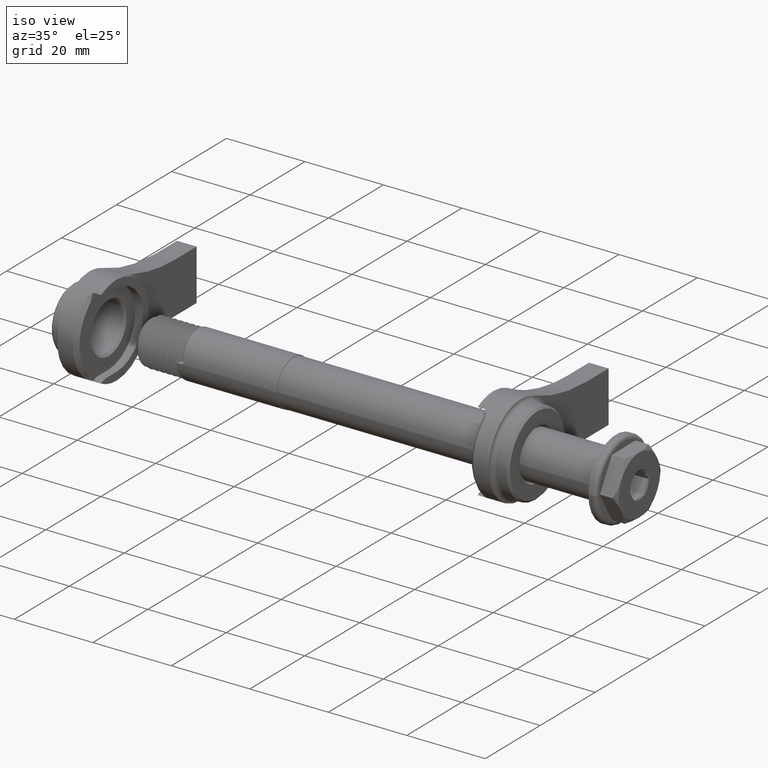
[diagram: clean part render]
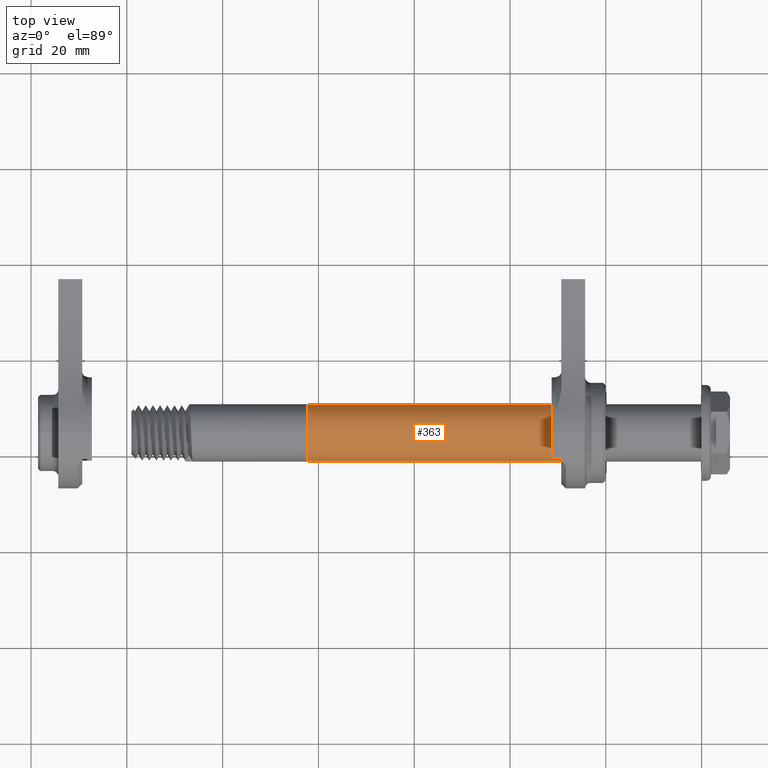
[diagram: tour spotlight — one face highlighted and labeled with its STEP entity id]
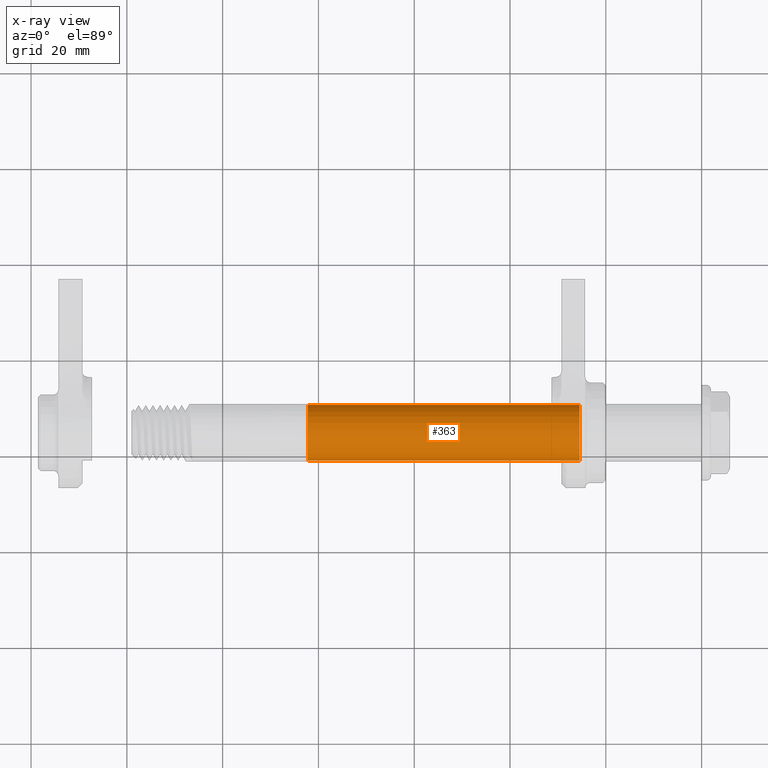
[diagram: x-ray of the same camera — body ghosted, this tour face saturated]
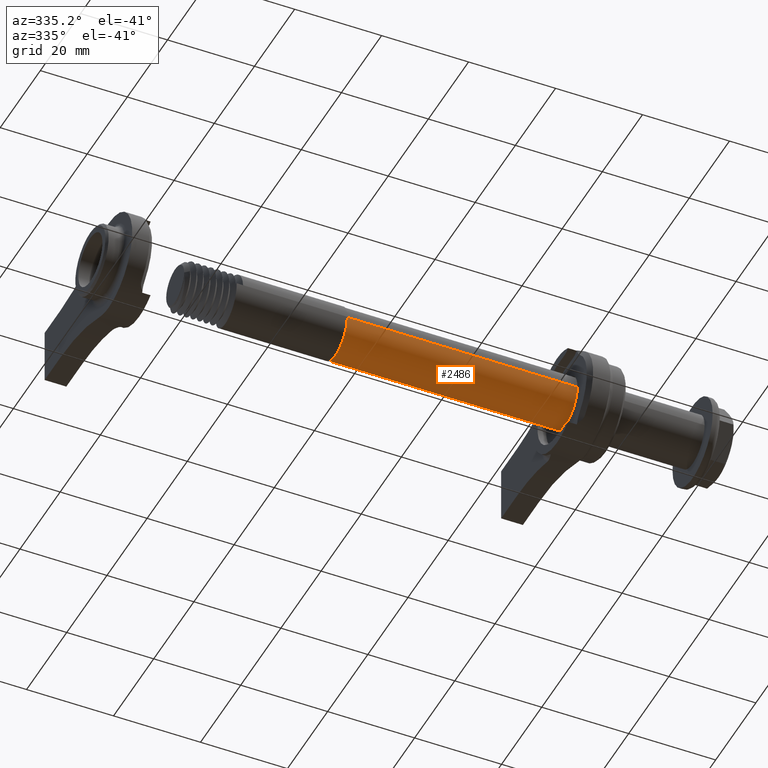
[diagram: tour spotlight — one face highlighted and labeled with its STEP entity id]
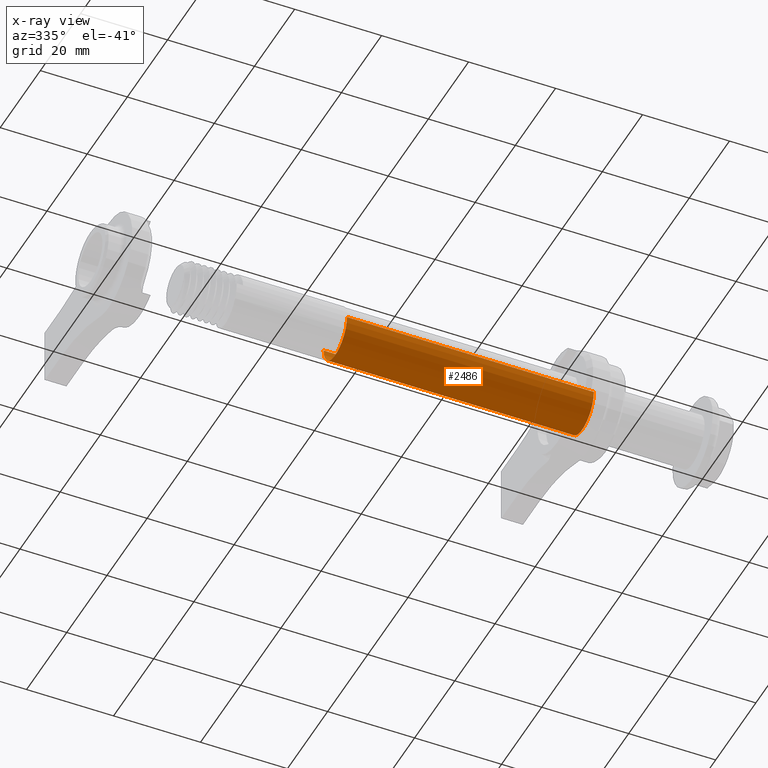
[diagram: x-ray of the same camera — body ghosted, this tour face saturated]
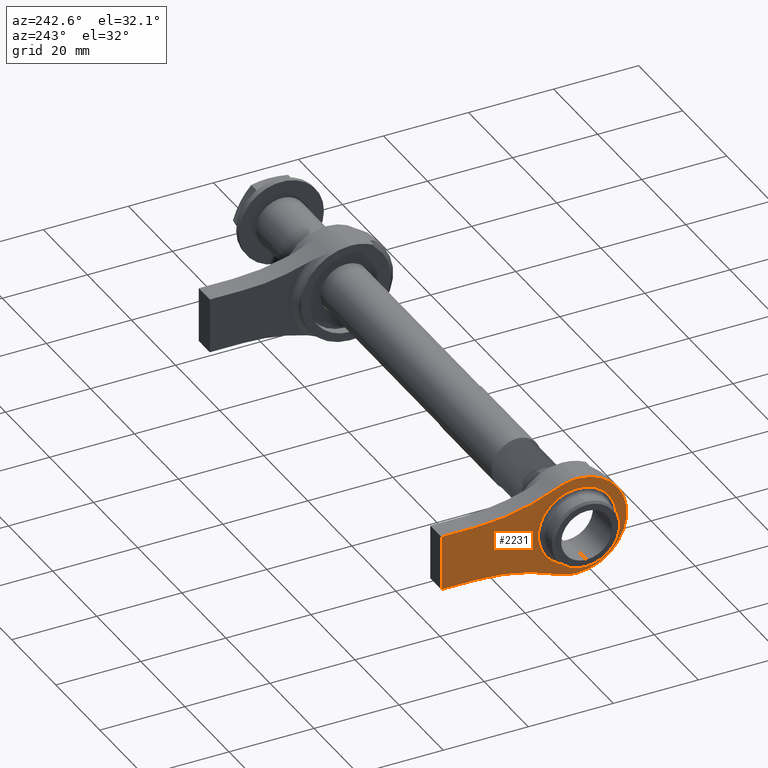
[diagram: tour spotlight — one face highlighted and labeled with its STEP entity id]
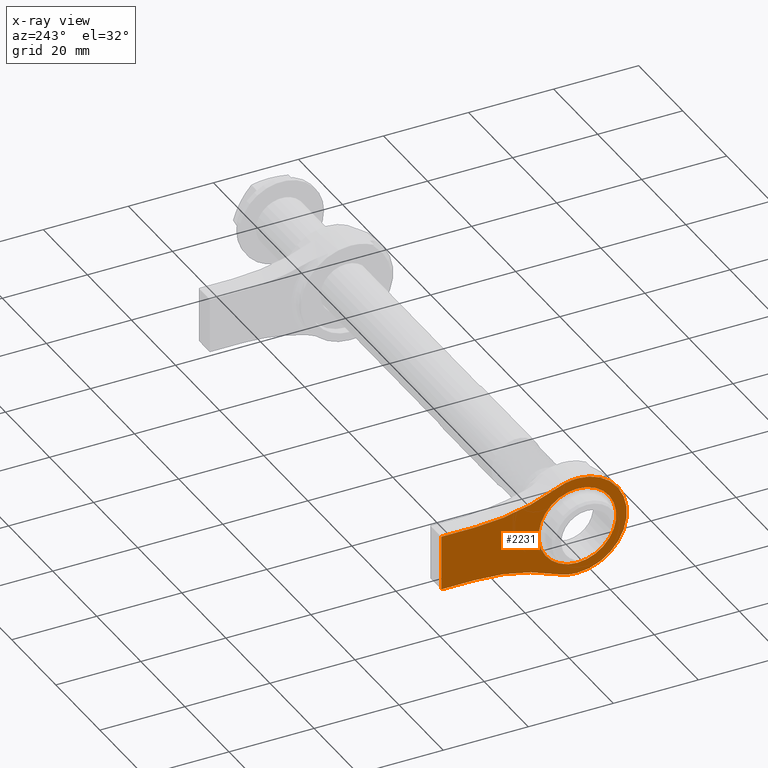
[diagram: x-ray of the same camera — body ghosted, this tour face saturated]
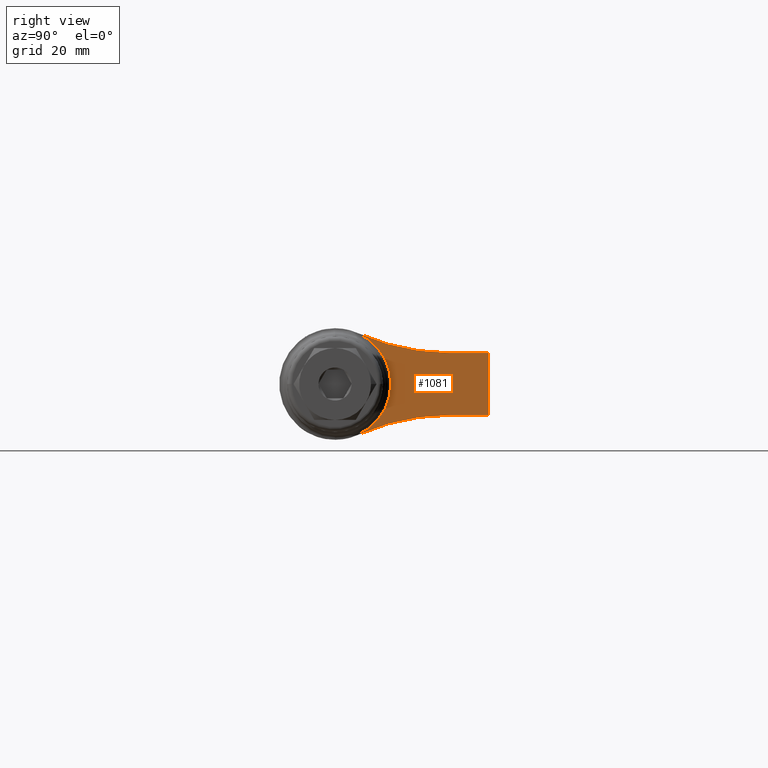
[diagram: tour spotlight — one face highlighted and labeled with its STEP entity id]
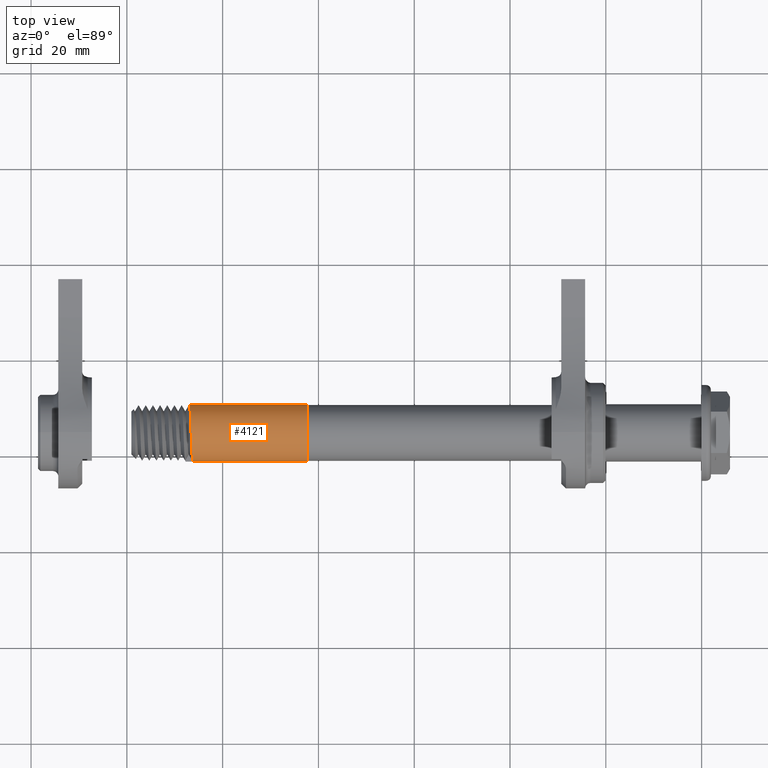
[diagram: tour spotlight — one face highlighted and labeled with its STEP entity id]
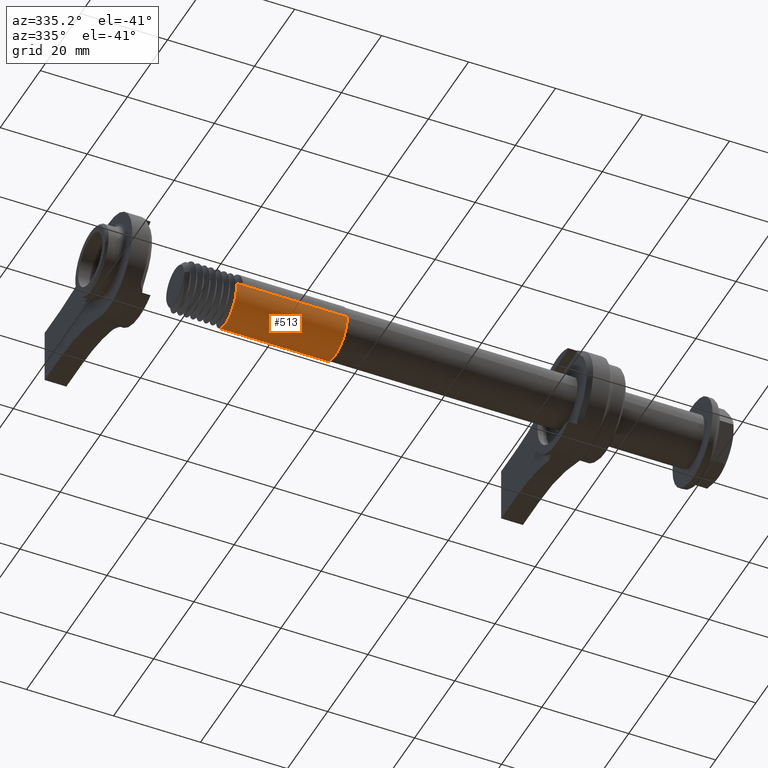
[diagram: tour spotlight — one face highlighted and labeled with its STEP entity id]
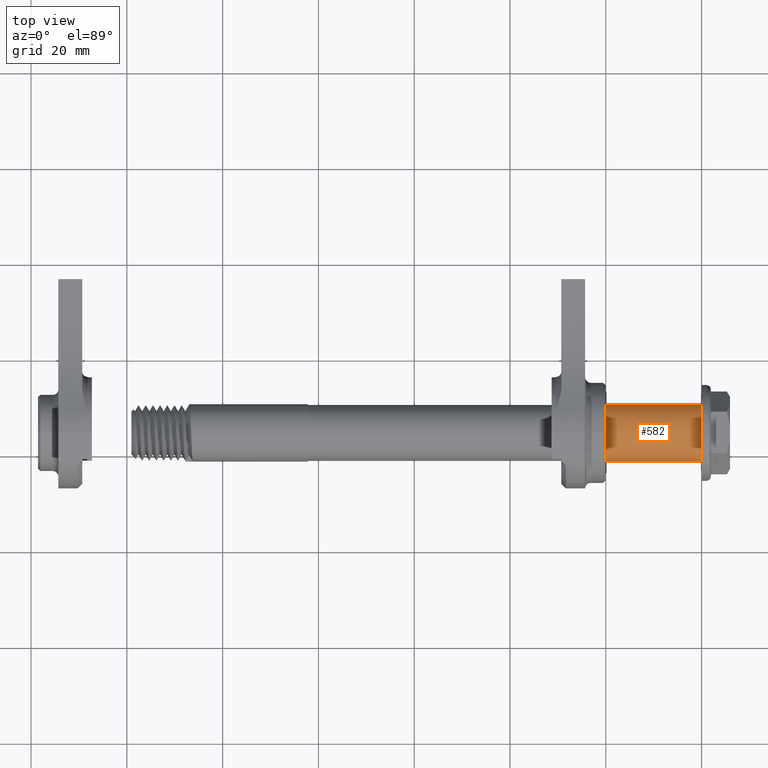
[diagram: tour spotlight — one face highlighted and labeled with its STEP entity id]
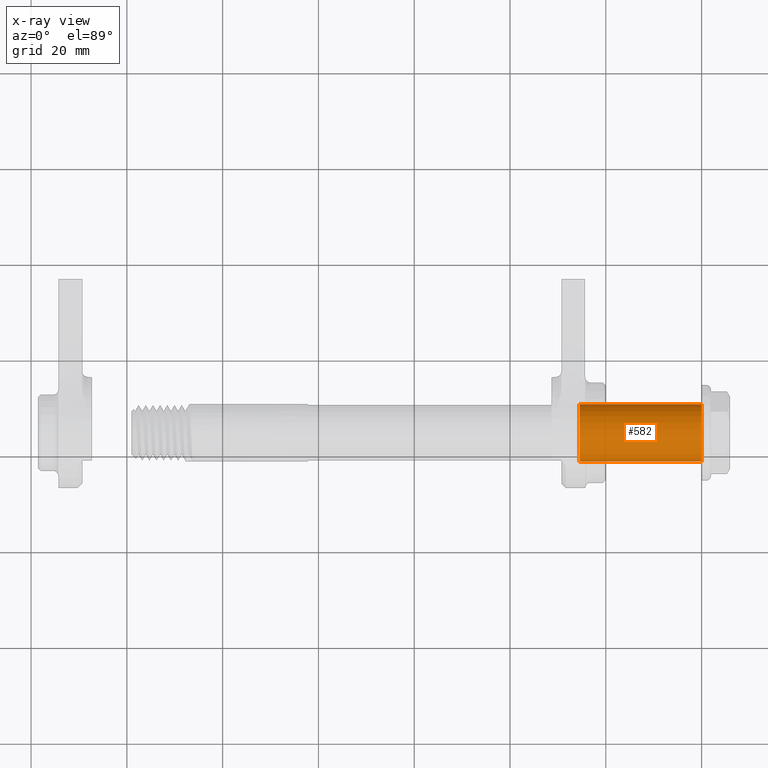
[diagram: x-ray of the same camera — body ghosted, this tour face saturated]
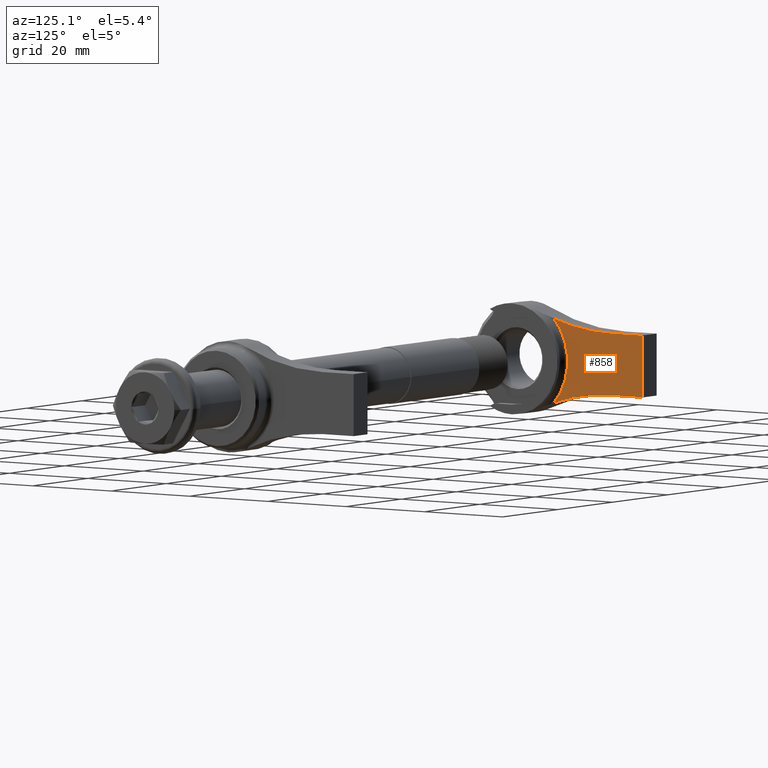
[diagram: tour spotlight — one face highlighted and labeled with its STEP entity id]
A machine part: a face-by-face anatomy tour. The part has 110 B-rep faces; the first image is the clean iso view, then the 8 largest visible faces are spotlighted one at a time (largest first), each with its STEP entity span.

Face 1 — top view, entity #363. An x-ray twin of the same camera follows (body ghosted, this face saturated) — the face is partly hidden behind the body. In plain terms, the highlighted cylindrical surface (edge-blend (fillet) strip) has radius 5.842 mm, axis along (1, 0, 0).
Definition (entity closure, byte-faithful):
#141 = EDGE_CURVE ( 'NONE', #3914, #2803, #1910, .T. ) ;
#363 = ADVANCED_FACE ( 'NONE', ( #2960 ), #1144, .T. ) ;
#373 = AXIS2_PLACEMENT_3D ( 'NONE', #1353, #1398, #374 ) ;
#374 = DIRECTION ( 'NONE',  ( 0.0000000000000000000, 0.0000000000000000000, -1.000000000000000000 ) ) ;
#400 = ORIENTED_EDGE ( 'NONE', *, *, #1794, .T. ) ;
#477 = CARTESIAN_POINT ( 'NONE',  ( -5.540562748477140300, 0.0000000000000000000, -5.841999999999999600 ) ) ;
#510 = CIRCLE ( 'NONE', #3299, 5.841999999999999600 ) ;
#754 = ORIENTED_EDGE ( 'NONE', *, *, #1349, .T. ) ;
#1077 = DIRECTION ( 'NONE',  ( 0.0000000000000000000, 0.0000000000000000000, 1.000000000000000000 ) ) ;
#1144 = CYLINDRICAL_SURFACE ( 'NONE', #2846, 5.841999999999999600 ) ;
#1289 = CARTESIAN_POINT ( 'NONE',  ( -5.540562748477140300, 7.154386600618837600E-016, 5.841999999999999600 ) ) ;
#1349 = EDGE_CURVE ( 'NONE', #2481, #2803, #510, .T. ) ;
#1353 = CARTESIAN_POINT ( 'NONE',  ( 36.82999999999999800, 0.0000000000000000000, 0.0000000000000000000 ) ) ;
#1398 = DIRECTION ( 'NONE',  ( 1.000000000000000000, 0.0000000000000000000, 0.0000000000000000000 ) ) ;
#1424 = DIRECTION ( 'NONE',  ( -1.000000000000000000, 0.0000000000000000000, 0.0000000000000000000 ) ) ;
#1514 = ORIENTED_EDGE ( 'NONE', *, *, #3841, .T. ) ;
#1794 = EDGE_CURVE ( 'NONE', #3914, #3018, #2480, .T. ) ;
#1875 = DIRECTION ( 'NONE',  ( 1.000000000000000000, 0.0000000000000000000, 0.0000000000000000000 ) ) ;
#1910 = LINE ( 'NONE', #477, #4075 ) ;
#2199 = EDGE_LOOP ( 'NONE', ( #400, #1514, #754, #3906 ) ) ;
#2290 = VECTOR ( 'NONE', #3196, 1000.000000000000000 ) ;
#2480 = CIRCLE ( 'NONE', #373, 5.841999999999999600 ) ;
#2481 = VERTEX_POINT ( 'NONE', #3252 ) ;
#2564 = CARTESIAN_POINT ( 'NONE',  ( 36.82999999999999800, 0.0000000000000000000, -5.841999999999999600 ) ) ;
#2803 = VERTEX_POINT ( 'NONE', #3369 ) ;
#2846 = AXIS2_PLACEMENT_3D ( 'NONE', #4221, #1875, #3570 ) ;
#2856 = CARTESIAN_POINT ( 'NONE',  ( 36.82999999999999800, 7.154386600618837600E-016, 5.841999999999999600 ) ) ;
#2960 = FACE_OUTER_BOUND ( 'NONE', #2199, .T. ) ;
#3018 = VERTEX_POINT ( 'NONE', #2856 ) ;
#3196 = DIRECTION ( 'NONE',  ( 1.000000000000000000, 0.0000000000000000000, 0.0000000000000000000 ) ) ;
#3252 = CARTESIAN_POINT ( 'NONE',  ( 93.59999999999999400, 7.154386600618837600E-016, 5.841999999999999600 ) ) ;
#3299 = AXIS2_PLACEMENT_3D ( 'NONE', #3853, #1424, #1077 ) ;
#3369 = CARTESIAN_POINT ( 'NONE',  ( 93.59999999999999400, 0.0000000000000000000, -5.841999999999999600 ) ) ;
#3423 = DIRECTION ( 'NONE',  ( 1.000000000000000000, 0.0000000000000000000, 0.0000000000000000000 ) ) ;
#3570 = DIRECTION ( 'NONE',  ( 0.0000000000000000000, 0.0000000000000000000, -1.000000000000000000 ) ) ;
#3841 = EDGE_CURVE ( 'NONE', #3018, #2481, #3898, .T. ) ;
#3853 = CARTESIAN_POINT ( 'NONE',  ( 93.59999999999999400, 0.0000000000000000000, 0.0000000000000000000 ) ) ;
#3898 = LINE ( 'NONE', #1289, #2290 ) ;
#3906 = ORIENTED_EDGE ( 'NONE', *, *, #141, .F. ) ;
#3914 = VERTEX_POINT ( 'NONE', #2564 ) ;
#4075 = VECTOR ( 'NONE', #3423, 1000.000000000000000 ) ;
#4221 = CARTESIAN_POINT ( 'NONE',  ( -5.540562748477140300, 0.0000000000000000000, 0.0000000000000000000 ) ) ;

Face 2 — auxiliary view, entity #2486. An x-ray twin of the same camera follows (body ghosted, this face saturated) — the face is partly hidden behind the body. In plain terms, the highlighted cylindrical surface (edge-blend (fillet) strip) has radius 5.842 mm, axis along (1, 0, 0).
Definition (entity closure, byte-faithful):
#134 = ORIENTED_EDGE ( 'NONE', *, *, #141, .T. ) ;
#141 = EDGE_CURVE ( 'NONE', #3914, #2803, #1910, .T. ) ;
#159 = DIRECTION ( 'NONE',  ( 1.000000000000000000, 0.0000000000000000000, 0.0000000000000000000 ) ) ;
#477 = CARTESIAN_POINT ( 'NONE',  ( -5.540562748477140300, 0.0000000000000000000, -5.841999999999999600 ) ) ;
#574 = ORIENTED_EDGE ( 'NONE', *, *, #1329, .T. ) ;
#704 = CIRCLE ( 'NONE', #2603, 5.841999999999999600 ) ;
#925 = ORIENTED_EDGE ( 'NONE', *, *, #4190, .T. ) ;
#1208 = CARTESIAN_POINT ( 'NONE',  ( 36.82999999999999800, 0.0000000000000000000, 0.0000000000000000000 ) ) ;
#1289 = CARTESIAN_POINT ( 'NONE',  ( -5.540562748477140300, 7.154386600618837600E-016, 5.841999999999999600 ) ) ;
#1329 = EDGE_CURVE ( 'NONE', #2803, #2481, #704, .T. ) ;
#1341 = FACE_OUTER_BOUND ( 'NONE', #1621, .T. ) ;
#1621 = EDGE_LOOP ( 'NONE', ( #2319, #925, #134, #574 ) ) ;
#1773 = DIRECTION ( 'NONE',  ( -1.000000000000000000, 0.0000000000000000000, 0.0000000000000000000 ) ) ;
#1910 = LINE ( 'NONE', #477, #4075 ) ;
#1976 = CIRCLE ( 'NONE', #4208, 5.841999999999999600 ) ;
#2032 = CYLINDRICAL_SURFACE ( 'NONE', #4385, 5.841999999999999600 ) ;
#2290 = VECTOR ( 'NONE', #3196, 1000.000000000000000 ) ;
#2319 = ORIENTED_EDGE ( 'NONE', *, *, #3841, .F. ) ;
#2481 = VERTEX_POINT ( 'NONE', #3252 ) ;
#2486 = ADVANCED_FACE ( 'NONE', ( #1341 ), #2032, .T. ) ;
#2564 = CARTESIAN_POINT ( 'NONE',  ( 36.82999999999999800, 0.0000000000000000000, -5.841999999999999600 ) ) ;
#2603 = AXIS2_PLACEMENT_3D ( 'NONE', #3800, #1773, #4152 ) ;
#2803 = VERTEX_POINT ( 'NONE', #3369 ) ;
#2856 = CARTESIAN_POINT ( 'NONE',  ( 36.82999999999999800, 7.154386600618837600E-016, 5.841999999999999600 ) ) ;
#3018 = VERTEX_POINT ( 'NONE', #2856 ) ;
#3061 = CARTESIAN_POINT ( 'NONE',  ( -5.540562748477140300, 0.0000000000000000000, 0.0000000000000000000 ) ) ;
#3196 = DIRECTION ( 'NONE',  ( 1.000000000000000000, 0.0000000000000000000, 0.0000000000000000000 ) ) ;
#3233 = DIRECTION ( 'NONE',  ( 0.0000000000000000000, 0.0000000000000000000, -1.000000000000000000 ) ) ;
#3252 = CARTESIAN_POINT ( 'NONE',  ( 93.59999999999999400, 7.154386600618837600E-016, 5.841999999999999600 ) ) ;
#3369 = CARTESIAN_POINT ( 'NONE',  ( 93.59999999999999400, 0.0000000000000000000, -5.841999999999999600 ) ) ;
#3423 = DIRECTION ( 'NONE',  ( 1.000000000000000000, 0.0000000000000000000, 0.0000000000000000000 ) ) ;
#3600 = DIRECTION ( 'NONE',  ( 1.000000000000000000, 0.0000000000000000000, 0.0000000000000000000 ) ) ;
#3800 = CARTESIAN_POINT ( 'NONE',  ( 93.59999999999999400, 0.0000000000000000000, 0.0000000000000000000 ) ) ;
#3841 = EDGE_CURVE ( 'NONE', #3018, #2481, #3898, .T. ) ;
#3898 = LINE ( 'NONE', #1289, #2290 ) ;
#3914 = VERTEX_POINT ( 'NONE', #2564 ) ;
#4075 = VECTOR ( 'NONE', #3423, 1000.000000000000000 ) ;
#4079 = DIRECTION ( 'NONE',  ( 0.0000000000000000000, 0.0000000000000000000, -1.000000000000000000 ) ) ;
#4152 = DIRECTION ( 'NONE',  ( 0.0000000000000000000, 0.0000000000000000000, 1.000000000000000000 ) ) ;
#4190 = EDGE_CURVE ( 'NONE', #3018, #3914, #1976, .T. ) ;
#4208 = AXIS2_PLACEMENT_3D ( 'NONE', #1208, #3600, #4079 ) ;
#4385 = AXIS2_PLACEMENT_3D ( 'NONE', #3061, #159, #3233 ) ;

Face 3 — auxiliary view, entity #2231. An x-ray twin of the same camera follows (body ghosted, this face saturated) — the face is partly hidden behind the body. In plain terms, the highlighted planar face has unit normal (1, 0, 0).
Definition (entity closure, byte-faithful):
#2 = ORIENTED_EDGE ( 'NONE', *, *, #1627, .F. ) ;
#16 = DIRECTION ( 'NONE',  ( 0.0000000000000000000, 0.0000000000000000000, 1.000000000000000000 ) ) ;
#57 = LINE ( 'NONE', #4370, #1192 ) ;
#81 = CIRCLE ( 'NONE', #3200, 11.64300000000000400 ) ;
#214 = CARTESIAN_POINT ( 'NONE',  ( -7.000000000000009800, 0.0000000000000000000, 9.143000000000000700 ) ) ;
#218 = VERTEX_POINT ( 'NONE', #1866 ) ;
#221 = ORIENTED_EDGE ( 'NONE', *, *, #458, .F. ) ;
#283 = DIRECTION ( 'NONE',  ( -1.000000000000000000, 0.0000000000000000000, 0.0000000000000000000 ) ) ;
#337 = CIRCLE ( 'NONE', #778, 11.64300000000000400 ) ;
#371 = CIRCLE ( 'NONE', #467, 11.64300000000000400 ) ;
#407 = ORIENTED_EDGE ( 'NONE', *, *, #3158, .F. ) ;
#458 = EDGE_CURVE ( 'NONE', #1296, #550, #2208, .T. ) ;
#467 = AXIS2_PLACEMENT_3D ( 'NONE', #689, #4089, #670 ) ;
#496 = CIRCLE ( 'NONE', #2139, 9.143000000000000700 ) ;
#550 = VERTEX_POINT ( 'NONE', #1923 ) ;
#561 = CARTESIAN_POINT ( 'NONE',  ( -7.000000000000006200, 24.00000000000000000, -6.499999999999999100 ) ) ;
#619 = DIRECTION ( 'NONE',  ( 0.0000000000000000000, 1.000000000000000000, 0.0000000000000000000 ) ) ;
#670 = DIRECTION ( 'NONE',  ( 0.0000000000000000000, 0.0000000000000000000, -1.000000000000000000 ) ) ;
#689 = CARTESIAN_POINT ( 'NONE',  ( -7.000000000000007100, 0.0000000000000000000, 0.0000000000000000000 ) ) ;
#696 = EDGE_CURVE ( 'NONE', #550, #3230, #2465, .T. ) ;
#741 = DIRECTION ( 'NONE',  ( 0.0000000000000000000, 0.0000000000000000000, 1.000000000000000000 ) ) ;
#778 = AXIS2_PLACEMENT_3D ( 'NONE', #2095, #3833, #3139 ) ;
#821 = EDGE_LOOP ( 'NONE', ( #3582, #2879 ) ) ;
#870 = ORIENTED_EDGE ( 'NONE', *, *, #4260, .F. ) ;
#906 = EDGE_LOOP ( 'NONE', ( #221, #1416, #2, #1446, #870, #407, #1694, #2931 ) ) ;
#915 = DIRECTION ( 'NONE',  ( -1.000000000000000000, 0.0000000000000000000, 0.0000000000000000000 ) ) ;
#1074 = VERTEX_POINT ( 'NONE', #2825 ) ;
#1107 = DIRECTION ( 'NONE',  ( 0.0000000000000000000, 0.0000000000000000000, 1.000000000000000000 ) ) ;
#1145 = AXIS2_PLACEMENT_3D ( 'NONE', #2937, #915, #3285 ) ;
#1157 = CIRCLE ( 'NONE', #2288, 46.92694448765306700 ) ;
#1163 = CARTESIAN_POINT ( 'NONE',  ( -7.000000000000007100, 24.00000000000000000, 6.499999999999999100 ) ) ;
#1192 = VECTOR ( 'NONE', #619, 1000.000000000000000 ) ;
#1219 = EDGE_CURVE ( 'NONE', #1074, #4334, #337, .T. ) ;
#1296 = VERTEX_POINT ( 'NONE', #2113 ) ;
#1363 = CARTESIAN_POINT ( 'NONE',  ( -7.000000000000006200, 24.00000000000000000, -53.42694448765306700 ) ) ;
#1399 = AXIS2_PLACEMENT_3D ( 'NONE', #3744, #3530, #1107 ) ;
#1416 = ORIENTED_EDGE ( 'NONE', *, *, #2799, .F. ) ;
#1422 = DIRECTION ( 'NONE',  ( 0.0000000000000000000, 0.0000000000000000000, 1.000000000000000000 ) ) ;
#1446 = ORIENTED_EDGE ( 'NONE', *, *, #1219, .F. ) ;
#1447 = VERTEX_POINT ( 'NONE', #3265 ) ;
#1480 = CARTESIAN_POINT ( 'NONE',  ( -7.000000000000007100, 0.0000000000000000000, 0.0000000000000000000 ) ) ;
#1627 = EDGE_CURVE ( 'NONE', #4334, #4332, #1157, .T. ) ;
#1652 = FACE_OUTER_BOUND ( 'NONE', #906, .T. ) ;
#1694 = ORIENTED_EDGE ( 'NONE', *, *, #2324, .F. ) ;
#1716 = DIRECTION ( 'NONE',  ( -1.000000000000000000, 0.0000000000000000000, 0.0000000000000000000 ) ) ;
#1825 = DIRECTION ( 'NONE',  ( 0.0000000000000000000, 0.0000000000000000000, -1.000000000000000000 ) ) ;
#1842 = CARTESIAN_POINT ( 'NONE',  ( -7.000000000000007100, 24.00000000000000000, 6.499999999999999100 ) ) ;
#1866 = CARTESIAN_POINT ( 'NONE',  ( -7.000000000000007100, 0.0000000000000000000, 11.64300000000000400 ) ) ;
#1923 = CARTESIAN_POINT ( 'NONE',  ( -7.000000000000007100, 31.99999999999999300, 6.499999999999999100 ) ) ;
#2095 = CARTESIAN_POINT ( 'NONE',  ( -7.000000000000007100, 0.0000000000000000000, 0.0000000000000000000 ) ) ;
#2113 = CARTESIAN_POINT ( 'NONE',  ( -7.000000000000006200, 31.99999999999999300, -6.499999999999999100 ) ) ;
#2139 = AXIS2_PLACEMENT_3D ( 'NONE', #4028, #283, #1422 ) ;
#2208 = LINE ( 'NONE', #4052, #3923 ) ;
#2231 = ADVANCED_FACE ( 'NONE', ( #2439, #1652 ), #4229, .F. ) ;
#2288 = AXIS2_PLACEMENT_3D ( 'NONE', #1363, #1716, #16 ) ;
#2324 = EDGE_CURVE ( 'NONE', #3230, #2733, #2386, .T. ) ;
#2386 = CIRCLE ( 'NONE', #1399, 46.92694448765306700 ) ;
#2439 = FACE_BOUND ( 'NONE', #821, .T. ) ;
#2465 = LINE ( 'NONE', #1163, #3654 ) ;
#2514 = CARTESIAN_POINT ( 'NONE',  ( -7.000000000000006200, 24.00000000000000000, -53.42694448765306700 ) ) ;
#2730 = CARTESIAN_POINT ( 'NONE',  ( -7.000000000000006200, 4.770911129323450500, 10.62063350257872700 ) ) ;
#2733 = VERTEX_POINT ( 'NONE', #2730 ) ;
#2799 = EDGE_CURVE ( 'NONE', #4332, #1296, #57, .T. ) ;
#2825 = CARTESIAN_POINT ( 'NONE',  ( -7.000000000000007100, -1.425856268247263800E-015, -11.64300000000000400 ) ) ;
#2848 = EDGE_CURVE ( 'NONE', #3337, #1447, #496, .T. ) ;
#2879 = ORIENTED_EDGE ( 'NONE', *, *, #4323, .F. ) ;
#2931 = ORIENTED_EDGE ( 'NONE', *, *, #696, .F. ) ;
#2937 = CARTESIAN_POINT ( 'NONE',  ( -7.000000000000007100, 0.0000000000000000000, 0.0000000000000000000 ) ) ;
#3139 = DIRECTION ( 'NONE',  ( 0.0000000000000000000, 0.0000000000000000000, -1.000000000000000000 ) ) ;
#3158 = EDGE_CURVE ( 'NONE', #2733, #218, #81, .T. ) ;
#3200 = AXIS2_PLACEMENT_3D ( 'NONE', #1480, #3860, #1825 ) ;
#3230 = VERTEX_POINT ( 'NONE', #1842 ) ;
#3265 = CARTESIAN_POINT ( 'NONE',  ( -7.000000000000009800, -1.119694568460425000E-015, -9.143000000000000700 ) ) ;
#3285 = DIRECTION ( 'NONE',  ( 0.0000000000000000000, 0.0000000000000000000, 1.000000000000000000 ) ) ;
#3337 = VERTEX_POINT ( 'NONE', #214 ) ;
#3530 = DIRECTION ( 'NONE',  ( -1.000000000000000000, 0.0000000000000000000, 0.0000000000000000000 ) ) ;
#3582 = ORIENTED_EDGE ( 'NONE', *, *, #2848, .F. ) ;
#3654 = VECTOR ( 'NONE', #4210, 1000.000000000000000 ) ;
#3705 = DIRECTION ( 'NONE',  ( 0.0000000000000000000, 0.0000000000000000000, 1.000000000000000000 ) ) ;
#3744 = CARTESIAN_POINT ( 'NONE',  ( -7.000000000000007100, 24.00000000000000000, 53.42694448765304600 ) ) ;
#3778 = CIRCLE ( 'NONE', #1145, 9.143000000000000700 ) ;
#3833 = DIRECTION ( 'NONE',  ( 1.000000000000000000, 0.0000000000000000000, 0.0000000000000000000 ) ) ;
#3860 = DIRECTION ( 'NONE',  ( 1.000000000000000000, 0.0000000000000000000, 0.0000000000000000000 ) ) ;
#3923 = VECTOR ( 'NONE', #3705, 1000.000000000000000 ) ;
#4017 = AXIS2_PLACEMENT_3D ( 'NONE', #2514, #4107, #741 ) ;
#4028 = CARTESIAN_POINT ( 'NONE',  ( -7.000000000000007100, 0.0000000000000000000, 0.0000000000000000000 ) ) ;
#4052 = CARTESIAN_POINT ( 'NONE',  ( -7.000000000000007100, 31.99999999999999300, 6.499999999999999100 ) ) ;
#4089 = DIRECTION ( 'NONE',  ( 1.000000000000000000, 0.0000000000000000000, 0.0000000000000000000 ) ) ;
#4107 = DIRECTION ( 'NONE',  ( 1.000000000000000000, 0.0000000000000000000, -0.0000000000000000000 ) ) ;
#4210 = DIRECTION ( 'NONE',  ( 0.0000000000000000000, -1.000000000000000000, -0.0000000000000000000 ) ) ;
#4229 = PLANE ( 'NONE',  #4017 ) ;
#4260 = EDGE_CURVE ( 'NONE', #218, #1074, #371, .T. ) ;
#4323 = EDGE_CURVE ( 'NONE', #1447, #3337, #3778, .T. ) ;
#4324 = CARTESIAN_POINT ( 'NONE',  ( -7.000000000000007100, 4.770911129323443400, -10.62063350257873200 ) ) ;
#4332 = VERTEX_POINT ( 'NONE', #561 ) ;
#4334 = VERTEX_POINT ( 'NONE', #4324 ) ;
#4370 = CARTESIAN_POINT ( 'NONE',  ( -7.000000000000006200, 24.00000000000000000, -6.499999999999999100 ) ) ;

Face 4 — right view, entity #1081. In plain terms, the highlighted planar face has unit normal (-1, 0, 0).
Definition (entity closure, byte-faithful):
#177 = DIRECTION ( 'NONE',  ( -1.000000000000000000, -0.0000000000000000000, 0.0000000000000000000 ) ) ;
#246 = AXIS2_PLACEMENT_3D ( 'NONE', #3925, #1887, #2031 ) ;
#303 = DIRECTION ( 'NONE',  ( -0.0000000000000000000, -0.0000000000000000000, 1.000000000000000000 ) ) ;
#329 = EDGE_CURVE ( 'NONE', #646, #2412, #1783, .T. ) ;
#368 = VERTEX_POINT ( 'NONE', #1672 ) ;
#459 = DIRECTION ( 'NONE',  ( -1.000000000000000000, -0.0000000000000000000, 0.0000000000000000000 ) ) ;
#646 = VERTEX_POINT ( 'NONE', #4297 ) ;
#769 = CARTESIAN_POINT ( 'NONE',  ( 7.000000000000006200, 24.00000000000000000, -53.42694448765315900 ) ) ;
#787 = LINE ( 'NONE', #2006, #3815 ) ;
#826 = CARTESIAN_POINT ( 'NONE',  ( 7.000000000000006200, 0.0000000000000000000, 0.0000000000000000000 ) ) ;
#1081 = ADVANCED_FACE ( 'NONE', ( #1958 ), #3982, .F. ) ;
#1117 = DIRECTION ( 'NONE',  ( 0.0000000000000000000, 0.0000000000000000000, 1.000000000000000000 ) ) ;
#1125 = VERTEX_POINT ( 'NONE', #2142 ) ;
#1196 = EDGE_LOOP ( 'NONE', ( #1253, #2442, #3620, #1648, #3457, #4203 ) ) ;
#1253 = ORIENTED_EDGE ( 'NONE', *, *, #3074, .T. ) ;
#1500 = DIRECTION ( 'NONE',  ( 0.0000000000000000000, 1.000000000000000000, 0.0000000000000000000 ) ) ;
#1648 = ORIENTED_EDGE ( 'NONE', *, *, #2375, .T. ) ;
#1672 = CARTESIAN_POINT ( 'NONE',  ( 7.000000000000006200, 4.770911129323436300, 10.62063350257872700 ) ) ;
#1745 = AXIS2_PLACEMENT_3D ( 'NONE', #826, #2478, #1117 ) ;
#1764 = CARTESIAN_POINT ( 'NONE',  ( 7.000000000000006200, 24.00000000000000000, -6.499999999999999100 ) ) ;
#1783 = CIRCLE ( 'NONE', #1956, 46.92694448765315900 ) ;
#1795 = EDGE_CURVE ( 'NONE', #1125, #4341, #787, .T. ) ;
#1839 = VECTOR ( 'NONE', #3627, 1000.000000000000000 ) ;
#1887 = DIRECTION ( 'NONE',  ( -1.000000000000000000, -0.0000000000000000000, 0.0000000000000000000 ) ) ;
#1888 = EDGE_CURVE ( 'NONE', #368, #646, #4083, .T. ) ;
#1956 = AXIS2_PLACEMENT_3D ( 'NONE', #2209, #177, #3891 ) ;
#1958 = FACE_OUTER_BOUND ( 'NONE', #1196, .T. ) ;
#2006 = CARTESIAN_POINT ( 'NONE',  ( 7.000000000000006200, 31.99999999999999300, 6.500000000000000000 ) ) ;
#2022 = VERTEX_POINT ( 'NONE', #2682 ) ;
#2031 = DIRECTION ( 'NONE',  ( 0.0000000000000000000, 0.0000000000000000000, 1.000000000000000000 ) ) ;
#2142 = CARTESIAN_POINT ( 'NONE',  ( 7.000000000000006200, 31.99999999999999300, -6.500000000000000000 ) ) ;
#2209 = CARTESIAN_POINT ( 'NONE',  ( 7.000000000000006200, 24.00000000000000000, -53.42694448765315900 ) ) ;
#2375 = EDGE_CURVE ( 'NONE', #2412, #1125, #3515, .T. ) ;
#2412 = VERTEX_POINT ( 'NONE', #1764 ) ;
#2442 = ORIENTED_EDGE ( 'NONE', *, *, #1888, .T. ) ;
#2478 = DIRECTION ( 'NONE',  ( -1.000000000000000000, -0.0000000000000000000, 0.0000000000000000000 ) ) ;
#2682 = CARTESIAN_POINT ( 'NONE',  ( 7.000000000000006200, 24.00000000000000000, 6.500000000000000000 ) ) ;
#3074 = EDGE_CURVE ( 'NONE', #2022, #368, #4104, .T. ) ;
#3218 = CARTESIAN_POINT ( 'NONE',  ( 7.000000000000006200, 24.00000000000000000, 6.500000000000000000 ) ) ;
#3364 = AXIS2_PLACEMENT_3D ( 'NONE', #769, #459, #3436 ) ;
#3436 = DIRECTION ( 'NONE',  ( 0.0000000000000000000, 0.0000000000000000000, 1.000000000000000000 ) ) ;
#3457 = ORIENTED_EDGE ( 'NONE', *, *, #1795, .T. ) ;
#3515 = LINE ( 'NONE', #3809, #3638 ) ;
#3620 = ORIENTED_EDGE ( 'NONE', *, *, #329, .T. ) ;
#3626 = CARTESIAN_POINT ( 'NONE',  ( 7.000000000000006200, 31.99999999999999300, 6.500000000000000000 ) ) ;
#3627 = DIRECTION ( 'NONE',  ( -0.0000000000000000000, -1.000000000000000000, -0.0000000000000000000 ) ) ;
#3638 = VECTOR ( 'NONE', #1500, 1000.000000000000000 ) ;
#3653 = LINE ( 'NONE', #3218, #1839 ) ;
#3809 = CARTESIAN_POINT ( 'NONE',  ( 7.000000000000006200, 24.00000000000000000, -6.500000000000000000 ) ) ;
#3815 = VECTOR ( 'NONE', #303, 1000.000000000000000 ) ;
#3891 = DIRECTION ( 'NONE',  ( 0.0000000000000000000, 0.0000000000000000000, 1.000000000000000000 ) ) ;
#3925 = CARTESIAN_POINT ( 'NONE',  ( 7.000000000000006200, 24.00000000000000000, 53.42694448765315900 ) ) ;
#3976 = EDGE_CURVE ( 'NONE', #4341, #2022, #3653, .T. ) ;
#3982 = PLANE ( 'NONE',  #3364 ) ;
#4083 = CIRCLE ( 'NONE', #1745, 11.64300000000000100 ) ;
#4104 = CIRCLE ( 'NONE', #246, 46.92694448765315200 ) ;
#4203 = ORIENTED_EDGE ( 'NONE', *, *, #3976, .T. ) ;
#4297 = CARTESIAN_POINT ( 'NONE',  ( 7.000000000000006200, 4.770911129323430100, -10.62063350257873200 ) ) ;
#4341 = VERTEX_POINT ( 'NONE', #3626 ) ;

Face 5 — top view, entity #4121. In plain terms, the highlighted cylindrical surface (edge-blend (fillet) strip) has radius 5.9817 mm, axis along (-1, 0, 0).
Definition (entity closure, byte-faithful):
#208 = CARTESIAN_POINT ( 'NONE',  ( 119.0000000000000000, 0.0000000000000000000, 5.981699999999998200 ) ) ;
#262 = DIRECTION ( 'NONE',  ( 0.0000000000000000000, 0.0000000000000000000, 1.000000000000000000 ) ) ;
#548 = DIRECTION ( 'NONE',  ( -1.000000000000000000, -0.0000000000000000000, -0.0000000000000000000 ) ) ;
#650 = EDGE_CURVE ( 'NONE', #3345, #3134, #2583, .T. ) ;
#765 = CARTESIAN_POINT ( 'NONE',  ( 36.82999999999999800, 0.0000000000000000000, 0.0000000000000000000 ) ) ;
#888 = CARTESIAN_POINT ( 'NONE',  ( 12.57420989385827200, 5.981699999999739800, 2.477701266047770200 ) ) ;
#1007 =( BOUNDED_CURVE ( )  B_SPLINE_CURVE ( 2, ( #3278, #2910, #3180, #888, #3260, #3604, #1571, #2929, #1897 ),
 .UNSPECIFIED., .F., .F. ) 
 B_SPLINE_CURVE_WITH_KNOTS ( ( 3, 2, 2, 2, 3 ),
 ( 0.0000000000000000000, 0.1250000000000042700, 0.2500000000000085500, 0.3750000000000128200, 0.5000000000000171000 ),
 .UNSPECIFIED. ) 
 CURVE ( )  GEOMETRIC_REPRESENTATION_ITEM ( )  RATIONAL_B_SPLINE_CURVE ( ( 1.000000000000000000, 0.9238795325112867400, 1.000000000000000000, 0.9238795325112867400, 1.000000000000000000, 0.9238795325112867400, 1.000000000000000000, 0.9238795325112763000, 1.000000000000010400 ) ) 
 REPRESENTATION_ITEM ( '' )  );
#1110 = DIRECTION ( 'NONE',  ( 0.0000000000000000000, 0.0000000000000000000, -1.000000000000000000 ) ) ;
#1281 = FACE_OUTER_BOUND ( 'NONE', #2560, .T. ) ;
#1340 = LINE ( 'NONE', #2281, #2253 ) ;
#1373 = CYLINDRICAL_SURFACE ( 'NONE', #3035, 5.981699999999998200 ) ;
#1571 = CARTESIAN_POINT ( 'NONE',  ( 12.29295989385827100, 4.229700633024013900, -4.229700633023128400 ) ) ;
#1603 = CIRCLE ( 'NONE', #2967, 5.981699999999998200 ) ;
#1677 = VECTOR ( 'NONE', #1860, 1000.000000000000000 ) ;
#1860 = DIRECTION ( 'NONE',  ( -1.000000000000000000, -0.0000000000000000000, -0.0000000000000000000 ) ) ;
#1897 = CARTESIAN_POINT ( 'NONE',  ( 12.10545989385824400, 3.467051619682210300E-016, -5.981699999999998200 ) ) ;
#2253 = VECTOR ( 'NONE', #548, 1000.000000000000000 ) ;
#2281 = CARTESIAN_POINT ( 'NONE',  ( 119.0000000000000000, 7.325469758459720600E-016, -5.981699999999998200 ) ) ;
#2560 = EDGE_LOOP ( 'NONE', ( #3253, #4150, #3849, #3329 ) ) ;
#2583 = LINE ( 'NONE', #208, #1677 ) ;
#2642 = VERTEX_POINT ( 'NONE', #3520 ) ;
#2798 = CARTESIAN_POINT ( 'NONE',  ( 12.85545989385826900, -6.272823647125848300E-013, 5.981699999999998200 ) ) ;
#2910 = CARTESIAN_POINT ( 'NONE',  ( 12.76170989385827100, 2.477701266046518300, 5.981700000000256700 ) ) ;
#2929 = CARTESIAN_POINT ( 'NONE',  ( 12.19920989385825800, 2.477701266047508600, -5.981699999999998200 ) ) ;
#2941 = VERTEX_POINT ( 'NONE', #3010 ) ;
#2967 = AXIS2_PLACEMENT_3D ( 'NONE', #765, #3135, #1110 ) ;
#3010 = CARTESIAN_POINT ( 'NONE',  ( 12.10545989385824400, 3.467051619682210300E-016, -5.981699999999998200 ) ) ;
#3020 = EDGE_CURVE ( 'NONE', #2642, #2941, #1340, .T. ) ;
#3035 = AXIS2_PLACEMENT_3D ( 'NONE', #3708, #4236, #262 ) ;
#3134 = VERTEX_POINT ( 'NONE', #2798 ) ;
#3135 = DIRECTION ( 'NONE',  ( 1.000000000000000000, 0.0000000000000000000, 0.0000000000000000000 ) ) ;
#3180 = CARTESIAN_POINT ( 'NONE',  ( 12.66795989385827100, 4.229700633023128400, 4.229700633024013000 ) ) ;
#3253 = ORIENTED_EDGE ( 'NONE', *, *, #4416, .F. ) ;
#3260 = CARTESIAN_POINT ( 'NONE',  ( 12.48045989385826900, 5.981699999999998200, 6.261835442488158500E-013 ) ) ;
#3278 = CARTESIAN_POINT ( 'NONE',  ( 12.85545989385826900, -6.272823647125848300E-013, 5.981699999999998200 ) ) ;
#3329 = ORIENTED_EDGE ( 'NONE', *, *, #650, .F. ) ;
#3345 = VERTEX_POINT ( 'NONE', #3517 ) ;
#3347 = EDGE_CURVE ( 'NONE', #3134, #2941, #1007, .T. ) ;
#3517 = CARTESIAN_POINT ( 'NONE',  ( 36.82999999999999800, 0.0000000000000000000, 5.981699999999998200 ) ) ;
#3520 = CARTESIAN_POINT ( 'NONE',  ( 36.82999999999999800, 7.325469758459720600E-016, -5.981699999999998200 ) ) ;
#3604 = CARTESIAN_POINT ( 'NONE',  ( 12.38670989385827100, 5.981700000000256700, -2.477701266046518300 ) ) ;
#3708 = CARTESIAN_POINT ( 'NONE',  ( 119.0000000000000000, 0.0000000000000000000, 0.0000000000000000000 ) ) ;
#3849 = ORIENTED_EDGE ( 'NONE', *, *, #3347, .F. ) ;
#4121 = ADVANCED_FACE ( 'NONE', ( #1281 ), #1373, .T. ) ;
#4150 = ORIENTED_EDGE ( 'NONE', *, *, #3020, .T. ) ;
#4236 = DIRECTION ( 'NONE',  ( -1.000000000000000000, -0.0000000000000000000, -0.0000000000000000000 ) ) ;
#4416 = EDGE_CURVE ( 'NONE', #2642, #3345, #1603, .T. ) ;

Face 6 — auxiliary view, entity #513. In plain terms, the highlighted cylindrical surface (edge-blend (fillet) strip) has radius 5.9817 mm, axis along (-1, 0, 0).
Definition (entity closure, byte-faithful):
#103 = CARTESIAN_POINT ( 'NONE',  ( 119.0000000000000000, -6.258172707608930200E-013, 5.981699999999998200 ) ) ;
#192 = CARTESIAN_POINT ( 'NONE',  ( 12.01170989385826200, -2.477701266046775400, -5.981700000000000000 ) ) ;
#208 = CARTESIAN_POINT ( 'NONE',  ( 119.0000000000000000, 0.0000000000000000000, 5.981699999999998200 ) ) ;
#240 = DIRECTION ( 'NONE',  ( 0.0000000000000000000, 0.0000000000000000000, -1.000000000000000000 ) ) ;
#379 = CARTESIAN_POINT ( 'NONE',  ( 11.35545989385827400, -6.272823647125849300E-013, 5.981699999999998200 ) ) ;
#418 = EDGE_CURVE ( 'NONE', #2941, #2874, #1388, .T. ) ;
#494 = AXIS2_PLACEMENT_3D ( 'NONE', #1643, #2306, #2988 ) ;
#513 = ADVANCED_FACE ( 'NONE', ( #2630 ), #1026, .T. ) ;
#523 = EDGE_LOOP ( 'NONE', ( #1308, #3051, #2099, #4336, #921 ) ) ;
#548 = DIRECTION ( 'NONE',  ( -1.000000000000000000, -0.0000000000000000000, -0.0000000000000000000 ) ) ;
#650 = EDGE_CURVE ( 'NONE', #3345, #3134, #2583, .T. ) ;
#845 = CIRCLE ( 'NONE', #2419, 5.981699999999998200 ) ;
#882 = CARTESIAN_POINT ( 'NONE',  ( 11.91795989385827200, -4.229700633023126600, -4.229700633024013900 ) ) ;
#921 = ORIENTED_EDGE ( 'NONE', *, *, #418, .F. ) ;
#1026 = CYLINDRICAL_SURFACE ( 'NONE', #494, 5.981699999999998200 ) ;
#1130 = EDGE_CURVE ( 'NONE', #2874, #3134, #4405, .T. ) ;
#1308 = ORIENTED_EDGE ( 'NONE', *, *, #3020, .F. ) ;
#1340 = LINE ( 'NONE', #2281, #2253 ) ;
#1388 =( BOUNDED_CURVE ( )  B_SPLINE_CURVE ( 2, ( #1729, #192, #882, #2236, #2251, #2072, #1577, #4119, #2741 ),
 .UNSPECIFIED., .F., .F. ) 
 B_SPLINE_CURVE_WITH_KNOTS ( ( 3, 2, 2, 2, 3 ),
 ( 0.5000000000000171000, 0.6250000000000128800, 0.7500000000000085500, 0.8750000000000042200, 1.000000000000000000 ),
 .UNSPECIFIED. ) 
 CURVE ( )  GEOMETRIC_REPRESENTATION_ITEM ( )  RATIONAL_B_SPLINE_CURVE ( ( 0.9999999999999895600, 0.9238795325112971700, 1.000000000000000000, 0.9238795325112867400, 1.000000000000000000, 0.9238795325112867400, 1.000000000000000000, 0.9238795325112867400, 1.000000000000000000 ) ) 
 REPRESENTATION_ITEM ( '' )  );
#1577 = CARTESIAN_POINT ( 'NONE',  ( 11.54295989385827400, -4.229700633024013900, 4.229700633023126600 ) ) ;
#1643 = CARTESIAN_POINT ( 'NONE',  ( 119.0000000000000000, 0.0000000000000000000, 0.0000000000000000000 ) ) ;
#1677 = VECTOR ( 'NONE', #1860, 1000.000000000000000 ) ;
#1729 = CARTESIAN_POINT ( 'NONE',  ( 12.10545989385824400, 3.467051619682210300E-016, -5.981699999999998200 ) ) ;
#1860 = DIRECTION ( 'NONE',  ( -1.000000000000000000, -0.0000000000000000000, -0.0000000000000000000 ) ) ;
#2072 = CARTESIAN_POINT ( 'NONE',  ( 11.63670989385827100, -5.981700000000258500, 2.477701266046515200 ) ) ;
#2099 = ORIENTED_EDGE ( 'NONE', *, *, #650, .T. ) ;
#2236 = CARTESIAN_POINT ( 'NONE',  ( 11.82420989385827200, -5.981699999999739800, -2.477701266047769300 ) ) ;
#2251 = CARTESIAN_POINT ( 'NONE',  ( 11.73045989385827200, -5.981699999999998200, -6.269160912246619000E-013 ) ) ;
#2253 = VECTOR ( 'NONE', #548, 1000.000000000000000 ) ;
#2270 = DIRECTION ( 'NONE',  ( 1.000000000000000000, 0.0000000000000000000, 0.0000000000000000000 ) ) ;
#2281 = CARTESIAN_POINT ( 'NONE',  ( 119.0000000000000000, 7.325469758459720600E-016, -5.981699999999998200 ) ) ;
#2306 = DIRECTION ( 'NONE',  ( -1.000000000000000000, -0.0000000000000000000, -0.0000000000000000000 ) ) ;
#2419 = AXIS2_PLACEMENT_3D ( 'NONE', #4328, #2270, #240 ) ;
#2583 = LINE ( 'NONE', #208, #1677 ) ;
#2630 = FACE_OUTER_BOUND ( 'NONE', #523, .T. ) ;
#2642 = VERTEX_POINT ( 'NONE', #3520 ) ;
#2741 = CARTESIAN_POINT ( 'NONE',  ( 11.35545989385827400, -6.272823647125849300E-013, 5.981699999999998200 ) ) ;
#2798 = CARTESIAN_POINT ( 'NONE',  ( 12.85545989385826900, -6.272823647125848300E-013, 5.981699999999998200 ) ) ;
#2874 = VERTEX_POINT ( 'NONE', #379 ) ;
#2941 = VERTEX_POINT ( 'NONE', #3010 ) ;
#2988 = DIRECTION ( 'NONE',  ( 0.0000000000000000000, 0.0000000000000000000, 1.000000000000000000 ) ) ;
#3010 = CARTESIAN_POINT ( 'NONE',  ( 12.10545989385824400, 3.467051619682210300E-016, -5.981699999999998200 ) ) ;
#3020 = EDGE_CURVE ( 'NONE', #2642, #2941, #1340, .T. ) ;
#3051 = ORIENTED_EDGE ( 'NONE', *, *, #3377, .F. ) ;
#3134 = VERTEX_POINT ( 'NONE', #2798 ) ;
#3345 = VERTEX_POINT ( 'NONE', #3517 ) ;
#3377 = EDGE_CURVE ( 'NONE', #3345, #2642, #845, .T. ) ;
#3517 = CARTESIAN_POINT ( 'NONE',  ( 36.82999999999999800, 0.0000000000000000000, 5.981699999999998200 ) ) ;
#3520 = CARTESIAN_POINT ( 'NONE',  ( 36.82999999999999800, 7.325469758459720600E-016, -5.981699999999998200 ) ) ;
#3926 = VECTOR ( 'NONE', #4130, 1000.000000000000000 ) ;
#4119 = CARTESIAN_POINT ( 'NONE',  ( 11.44920989385827400, -2.477701266047769300, 5.981699999999739800 ) ) ;
#4130 = DIRECTION ( 'NONE',  ( 1.000000000000000000, 0.0000000000000000000, 0.0000000000000000000 ) ) ;
#4328 = CARTESIAN_POINT ( 'NONE',  ( 36.82999999999999800, 0.0000000000000000000, 0.0000000000000000000 ) ) ;
#4336 = ORIENTED_EDGE ( 'NONE', *, *, #1130, .F. ) ;
#4405 = LINE ( 'NONE', #103, #3926 ) ;

Face 7 — top view, entity #582. An x-ray twin of the same camera follows (body ghosted, this face saturated) — the face is partly hidden behind the body. In plain terms, the highlighted cylindrical surface (edge-blend (fillet) strip) has radius 5.9817 mm, axis along (-1, 0, 0).
Definition (entity closure, byte-faithful):
#92 = AXIS2_PLACEMENT_3D ( 'NONE', #1748, #3468, #3483 ) ;
#284 = CIRCLE ( 'NONE', #3132, 5.981699999999998200 ) ;
#314 = CARTESIAN_POINT ( 'NONE',  ( 93.59999999999999400, 7.325469758459720600E-016, -5.981699999999998200 ) ) ;
#452 = FACE_OUTER_BOUND ( 'NONE', #1381, .T. ) ;
#564 = CYLINDRICAL_SURFACE ( 'NONE', #2074, 5.981699999999998200 ) ;
#582 = ADVANCED_FACE ( 'NONE', ( #452 ), #564, .T. ) ;
#649 = CARTESIAN_POINT ( 'NONE',  ( 119.0000000000000000, 7.325469758459720600E-016, -5.981699999999998200 ) ) ;
#661 = VERTEX_POINT ( 'NONE', #1756 ) ;
#905 = VERTEX_POINT ( 'NONE', #649 ) ;
#934 = DIRECTION ( 'NONE',  ( -1.000000000000000000, -0.0000000000000000000, -0.0000000000000000000 ) ) ;
#942 = DIRECTION ( 'NONE',  ( -1.000000000000000000, -0.0000000000000000000, -0.0000000000000000000 ) ) ;
#1159 = CARTESIAN_POINT ( 'NONE',  ( 119.0000000000000000, 0.0000000000000000000, 0.0000000000000000000 ) ) ;
#1164 = EDGE_CURVE ( 'NONE', #3149, #1765, #4354, .T. ) ;
#1262 = CARTESIAN_POINT ( 'NONE',  ( 119.0000000000000000, 0.0000000000000000000, 0.0000000000000000000 ) ) ;
#1271 = EDGE_CURVE ( 'NONE', #661, #3149, #2839, .T. ) ;
#1381 = EDGE_LOOP ( 'NONE', ( #3456, #1550, #2790, #3510 ) ) ;
#1459 = DIRECTION ( 'NONE',  ( -1.000000000000000000, -0.0000000000000000000, -0.0000000000000000000 ) ) ;
#1550 = ORIENTED_EDGE ( 'NONE', *, *, #3389, .T. ) ;
#1748 = CARTESIAN_POINT ( 'NONE',  ( 93.59999999999999400, 0.0000000000000000000, 0.0000000000000000000 ) ) ;
#1756 = CARTESIAN_POINT ( 'NONE',  ( 119.0000000000000000, 0.0000000000000000000, 5.981699999999998200 ) ) ;
#1765 = VERTEX_POINT ( 'NONE', #314 ) ;
#2074 = AXIS2_PLACEMENT_3D ( 'NONE', #1262, #942, #3646 ) ;
#2127 = CARTESIAN_POINT ( 'NONE',  ( 119.0000000000000000, 0.0000000000000000000, 5.981699999999998200 ) ) ;
#2404 = VECTOR ( 'NONE', #1459, 1000.000000000000000 ) ;
#2479 = LINE ( 'NONE', #3983, #2849 ) ;
#2658 = EDGE_CURVE ( 'NONE', #905, #661, #284, .T. ) ;
#2790 = ORIENTED_EDGE ( 'NONE', *, *, #1164, .F. ) ;
#2839 = LINE ( 'NONE', #2127, #2404 ) ;
#2849 = VECTOR ( 'NONE', #934, 1000.000000000000000 ) ;
#3132 = AXIS2_PLACEMENT_3D ( 'NONE', #1159, #3535, #3887 ) ;
#3149 = VERTEX_POINT ( 'NONE', #3495 ) ;
#3389 = EDGE_CURVE ( 'NONE', #905, #1765, #2479, .T. ) ;
#3456 = ORIENTED_EDGE ( 'NONE', *, *, #2658, .F. ) ;
#3468 = DIRECTION ( 'NONE',  ( -1.000000000000000000, 0.0000000000000000000, 0.0000000000000000000 ) ) ;
#3483 = DIRECTION ( 'NONE',  ( 0.0000000000000000000, 0.0000000000000000000, 1.000000000000000000 ) ) ;
#3495 = CARTESIAN_POINT ( 'NONE',  ( 93.59999999999999400, 0.0000000000000000000, 5.981699999999998200 ) ) ;
#3510 = ORIENTED_EDGE ( 'NONE', *, *, #1271, .F. ) ;
#3535 = DIRECTION ( 'NONE',  ( 1.000000000000000000, 0.0000000000000000000, 0.0000000000000000000 ) ) ;
#3646 = DIRECTION ( 'NONE',  ( 0.0000000000000000000, 0.0000000000000000000, 1.000000000000000000 ) ) ;
#3887 = DIRECTION ( 'NONE',  ( 0.0000000000000000000, 0.0000000000000000000, -1.000000000000000000 ) ) ;
#3983 = CARTESIAN_POINT ( 'NONE',  ( 119.0000000000000000, 7.325469758459720600E-016, -5.981699999999998200 ) ) ;
#4354 = CIRCLE ( 'NONE', #92, 5.981699999999998200 ) ;

Face 8 — auxiliary view, entity #858. In plain terms, the highlighted planar face has unit normal (-1, 0, 0).
Definition (entity closure, byte-faithful):
#48 = CARTESIAN_POINT ( 'NONE',  ( -2.000000000000001800, 9.177650819074546700, -8.902388524611822600 ) ) ;
#188 = AXIS2_PLACEMENT_3D ( 'NONE', #386, #3927, #997 ) ;
#312 = VERTEX_POINT ( 'NONE', #48 ) ;
#320 = DIRECTION ( 'NONE',  ( 0.0000000000000000000, -1.000000000000000000, 0.0000000000000000000 ) ) ;
#340 = EDGE_CURVE ( 'NONE', #312, #2918, #3426, .T. ) ;
#386 = CARTESIAN_POINT ( 'NONE',  ( -2.000000000000001800, 0.0000000000000000000, 0.0000000000000000000 ) ) ;
#666 = VERTEX_POINT ( 'NONE', #3929 ) ;
#858 = ADVANCED_FACE ( 'NONE', ( #3740 ), #4277, .F. ) ;
#972 = CARTESIAN_POINT ( 'NONE',  ( -2.000000000000001800, 24.00000000000000000, -6.499999999999999100 ) ) ;
#997 = DIRECTION ( 'NONE',  ( 0.0000000000000000000, 0.0000000000000000000, -1.000000000000000000 ) ) ;
#1001 = AXIS2_PLACEMENT_3D ( 'NONE', #4280, #3657, #1134 ) ;
#1004 = ORIENTED_EDGE ( 'NONE', *, *, #1409, .T. ) ;
#1006 = VERTEX_POINT ( 'NONE', #1018 ) ;
#1018 = CARTESIAN_POINT ( 'NONE',  ( -2.000000000000001800, 31.99999999999999300, -6.499999999999999100 ) ) ;
#1134 = DIRECTION ( 'NONE',  ( 0.0000000000000000000, 0.0000000000000000000, -1.000000000000000000 ) ) ;
#1188 = DIRECTION ( 'NONE',  ( -1.000000000000000000, -0.0000000000000000000, -0.0000000000000000000 ) ) ;
#1299 = AXIS2_PLACEMENT_3D ( 'NONE', #3865, #4219, #1913 ) ;
#1355 = ORIENTED_EDGE ( 'NONE', *, *, #2685, .T. ) ;
#1409 = EDGE_CURVE ( 'NONE', #666, #4394, #2520, .T. ) ;
#1604 = CARTESIAN_POINT ( 'NONE',  ( -2.000000000000001800, 24.00000000000000000, 6.499999999999999100 ) ) ;
#1714 = AXIS2_PLACEMENT_3D ( 'NONE', #2483, #1188, #4265 ) ;
#1762 = LINE ( 'NONE', #3842, #3258 ) ;
#1793 = EDGE_LOOP ( 'NONE', ( #2320, #1355, #4182, #1004, #3355, #4135 ) ) ;
#1913 = DIRECTION ( 'NONE',  ( 0.0000000000000000000, 0.0000000000000000000, -1.000000000000000000 ) ) ;
#1994 = CARTESIAN_POINT ( 'NONE',  ( -2.000000000000001800, 9.177650819074546700, 8.902388524611822600 ) ) ;
#2107 = EDGE_CURVE ( 'NONE', #666, #1006, #1762, .T. ) ;
#2135 = DIRECTION ( 'NONE',  ( 0.0000000000000000000, 0.0000000000000000000, -1.000000000000000000 ) ) ;
#2181 = DIRECTION ( 'NONE',  ( 0.0000000000000000000, 1.000000000000000000, 0.0000000000000000000 ) ) ;
#2320 = ORIENTED_EDGE ( 'NONE', *, *, #340, .T. ) ;
#2394 = VECTOR ( 'NONE', #2181, 1000.000000000000000 ) ;
#2483 = CARTESIAN_POINT ( 'NONE',  ( -2.000000000000001800, 24.00000000000000000, -53.42694448765306700 ) ) ;
#2510 = LINE ( 'NONE', #2521, #2394 ) ;
#2520 = LINE ( 'NONE', #2666, #2767 ) ;
#2521 = CARTESIAN_POINT ( 'NONE',  ( -2.000000000000001800, 24.00000000000000000, -6.499999999999999100 ) ) ;
#2666 = CARTESIAN_POINT ( 'NONE',  ( -2.000000000000001800, 24.00000000000000000, 6.499999999999999100 ) ) ;
#2685 = EDGE_CURVE ( 'NONE', #2918, #1006, #2510, .T. ) ;
#2767 = VECTOR ( 'NONE', #320, 1000.000000000000000 ) ;
#2918 = VERTEX_POINT ( 'NONE', #972 ) ;
#3258 = VECTOR ( 'NONE', #2135, 1000.000000000000000 ) ;
#3319 = EDGE_CURVE ( 'NONE', #4394, #3789, #3990, .T. ) ;
#3355 = ORIENTED_EDGE ( 'NONE', *, *, #3319, .T. ) ;
#3426 = CIRCLE ( 'NONE', #1714, 46.92694448765307400 ) ;
#3657 = DIRECTION ( 'NONE',  ( 1.000000000000000000, 0.0000000000000000000, 0.0000000000000000000 ) ) ;
#3740 = FACE_OUTER_BOUND ( 'NONE', #1793, .T. ) ;
#3789 = VERTEX_POINT ( 'NONE', #1994 ) ;
#3842 = CARTESIAN_POINT ( 'NONE',  ( -2.000000000000001800, 31.99999999999999300, -10.62063350257873200 ) ) ;
#3865 = CARTESIAN_POINT ( 'NONE',  ( -2.000000000000001800, 24.00000000000000000, 53.42694448765306000 ) ) ;
#3922 = CIRCLE ( 'NONE', #1001, 12.78600000000000300 ) ;
#3927 = DIRECTION ( 'NONE',  ( -1.000000000000000000, 0.0000000000000000000, 0.0000000000000000000 ) ) ;
#3929 = CARTESIAN_POINT ( 'NONE',  ( -2.000000000000001800, 31.99999999999999300, 6.499999999999999100 ) ) ;
#3990 = CIRCLE ( 'NONE', #1299, 46.92694448765306700 ) ;
#4024 = EDGE_CURVE ( 'NONE', #312, #3789, #3922, .T. ) ;
#4135 = ORIENTED_EDGE ( 'NONE', *, *, #4024, .F. ) ;
#4182 = ORIENTED_EDGE ( 'NONE', *, *, #2107, .F. ) ;
#4219 = DIRECTION ( 'NONE',  ( -1.000000000000000000, -0.0000000000000000000, -0.0000000000000000000 ) ) ;
#4265 = DIRECTION ( 'NONE',  ( 0.0000000000000000000, 4.435976375405978400E-015, -1.000000000000000000 ) ) ;
#4277 = PLANE ( 'NONE',  #188 ) ;
#4280 = CARTESIAN_POINT ( 'NONE',  ( -2.000000000000001800, 0.0000000000000000000, 0.0000000000000000000 ) ) ;
#4394 = VERTEX_POINT ( 'NONE', #1604 ) ;